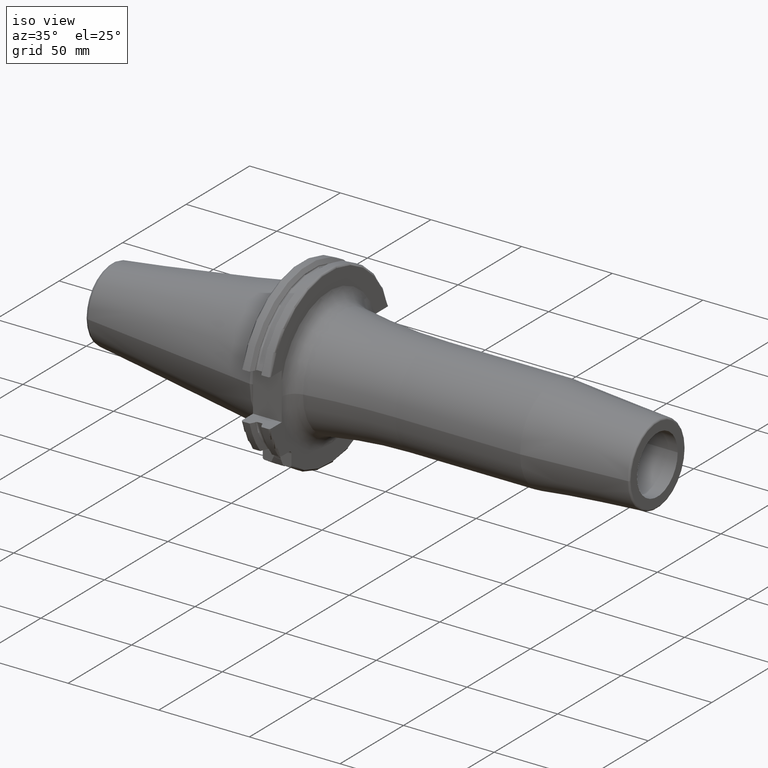
[diagram: clean part render]
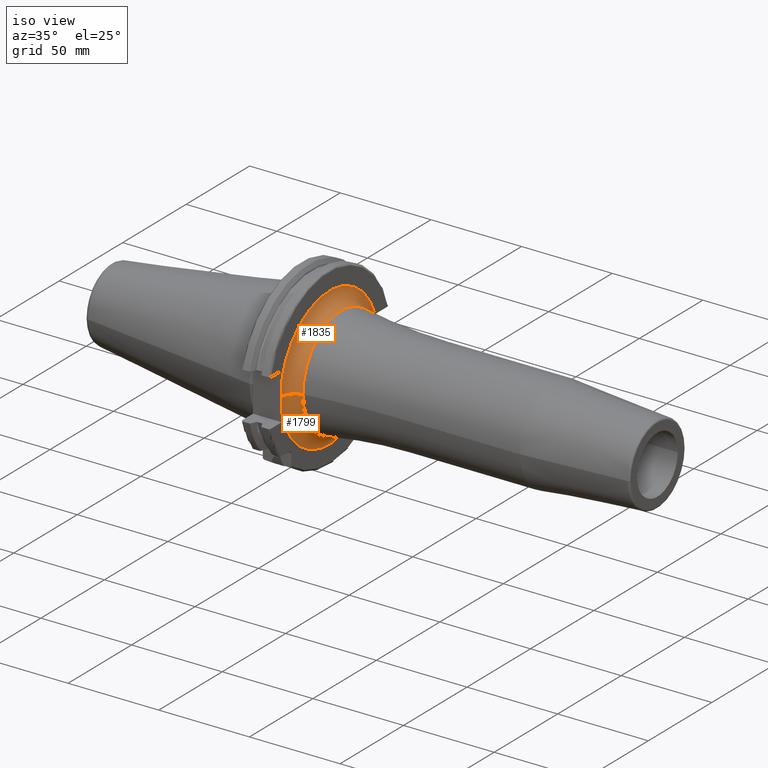
[diagram: same view with one multi-face feature highlighted, each face labeled with its STEP entity id]
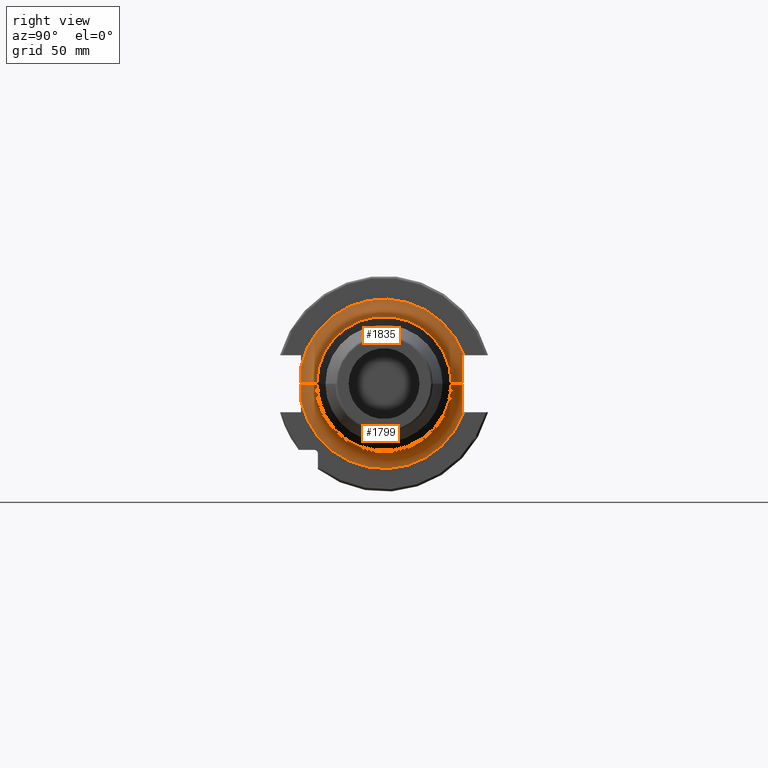
[diagram: same view with one multi-face feature highlighted, each face labeled with its STEP entity id]
A machine part, iso view. The highlighted faces form ONE feature: a constant-radius fillet chain: 2 tangent blend faces with common blend radius 8 mm. The faces share edges in the B-rep.
A second angle (right view) of the same feature is appended — it is thin or edge-on in the first view.
Their STEP definitions:
[1] entity #1835 (Torus):
#155=CARTESIAN_POINT('',(1.905E1,0.E0,0.E0));
#156=DIRECTION('',(1.E0,0.E0,0.E0));
#157=DIRECTION('',(0.E0,9.415938448179E-1,3.367506962146E-1));
#158=AXIS2_PLACEMENT_3D('',#155,#156,#157);
#179=CARTESIAN_POINT('',(2.705E1,-3.830735609290E1,-5.361461807655E-4));
#180=DIRECTION('',(0.E0,1.399590667163E-5,-9.999999999021E-1));
#181=DIRECTION('',(-9.948945934991E-1,1.009195116129E-1,1.412460066019E-6));
#182=AXIS2_PLACEMENT_3D('',#179,#180,#181);
#203=CARTESIAN_POINT('',(1.905E1,-3.749996793271E1,7.823549206088E0));
#204=CARTESIAN_POINT('',(1.905E1,-3.749996793271E1,6.958067766689E0));
#205=CARTESIAN_POINT('',(1.906146977762E1,-3.750001496473E1,5.224101569802E0));
#206=CARTESIAN_POINT('',(1.908433398583E1,-3.749999572436E1,2.611809137307E0));
#207=CARTESIAN_POINT('',(1.909084448880E1,-3.75E1,8.706347915606E-1));
#208=CARTESIAN_POINT('',(1.909084325201E1,-3.75E1,-5.248465002403E-4));
#210=CARTESIAN_POINT('',(1.908283882123E1,3.53E1,1.29E1));
#211=CARTESIAN_POINT('',(1.907191267326E1,3.542799192457E1,1.29E1));
#212=CARTESIAN_POINT('',(1.905550160235E1,3.568432605617E1,1.290000437877E1));
#213=CARTESIAN_POINT('',(1.905E1,3.594128480355E1,1.289999124246E1));
#214=CARTESIAN_POINT('',(1.905E1,3.606995384308E1,1.289999124246E1));
#216=CARTESIAN_POINT('',(1.908283882123E1,3.53E1,1.29E1));
#217=CARTESIAN_POINT('',(1.911143293889E1,3.53E1,1.198340562719E1));
#218=CARTESIAN_POINT('',(1.920002607626E1,3.53E1,1.016297425233E1));
#219=CARTESIAN_POINT('',(1.937023510309E1,3.53E1,7.434984216889E0));
#220=CARTESIAN_POINT('',(1.952047889859E1,3.53E1,4.808596238730E0));
#221=CARTESIAN_POINT('',(1.961515929801E1,3.53E1,2.371122429456E0));
#222=CARTESIAN_POINT('',(1.963677701444E1,3.53E1,7.799505411488E-1));
#223=CARTESIAN_POINT('',(1.963678144604E1,3.53E1,4.947270658838E-4));
#225=CARTESIAN_POINT('',(2.705E1,3.830735609289E1,5.368749541403E-4));
#226=DIRECTION('',(0.E0,-1.401493104316E-5,9.999999999018E-1));
#227=DIRECTION('',(-9.266523192449E-1,-3.759195116117E-1,-5.268486033532E-6));
#228=AXIS2_PLACEMENT_3D('',#225,#226,#227);
#230=CARTESIAN_POINT('',(2.576232876712E1,0.E0,0.E0));
#231=DIRECTION('',(1.E0,0.E0,0.E0));
#232=DIRECTION('',(0.E0,1.E0,0.E0));
#233=AXIS2_PLACEMENT_3D('',#230,#231,#232);
#1514=VERTEX_POINT('',#216);
#1515=VERTEX_POINT('',#223);
#1521=CARTESIAN_POINT('',(2.576232876712E1,-3.041166722259E1,0.E0));
#1522=CARTESIAN_POINT('',(2.576232876712E1,3.041166722259E1,0.E0));
#1523=VERTEX_POINT('',#1521);
#1524=VERTEX_POINT('',#1522);
#1525=CARTESIAN_POINT('',(1.905E1,3.606997071186E1,1.290002883569E1));
#1526=CARTESIAN_POINT('',(1.905E1,-3.749992387111E1,7.823633476638E0));
#1527=VERTEX_POINT('',#1525);
#1528=VERTEX_POINT('',#1526);
#1529=CARTESIAN_POINT('',(1.909084325201E1,-3.75E1,-5.248465002374E-4));
#1530=VERTEX_POINT('',#1529);
#1819=CARTESIAN_POINT('',(2.705E1,0.E0,0.E0));
#1820=DIRECTION('',(1.E0,0.E0,0.E0));
#1821=DIRECTION('',(0.E0,1.485959642861E-3,-9.999988959614E-1));
#1822=AXIS2_PLACEMENT_3D('',#1819,#1820,#1821);
#1823=TOROIDAL_SURFACE('',#1822,3.830735609666E1,8.E0);
#1825=ORIENTED_EDGE('',*,*,#1824,.T.);
#1826=ORIENTED_EDGE('',*,*,#1789,.F.);
#1827=ORIENTED_EDGE('',*,*,#1806,.F.);
#1828=ORIENTED_EDGE('',*,*,#1768,.F.);
#1830=ORIENTED_EDGE('',*,*,#1829,.F.);
#1831=ORIENTED_EDGE('',*,*,#1687,.T.);
#1832=ORIENTED_EDGE('',*,*,#1793,.T.);
#1833=EDGE_LOOP('',(#1825,#1826,#1827,#1828,#1830,#1831,#1832));
#1834=FACE_OUTER_BOUND('',#1833,.F.);
#1835=ADVANCED_FACE('',(#1834),#1823,.F.);
#159=CIRCLE('',#158,3.830735609666E1);
#183=CIRCLE('',#182,8.E0);
#209=B_SPLINE_CURVE_WITH_KNOTS('',3,(#203,#204,#205,#206,#207,#208),
.UNSPECIFIED.,.F.,.F.,(4,1,1,4),(0.E0,3.333333333333E-1,6.666666666667E-1,1.E0),
.UNSPECIFIED.);
#215=B_SPLINE_CURVE_WITH_KNOTS('',3,(#210,#211,#212,#213,#214),.UNSPECIFIED.,
.F.,.F.,(4,1,4),(0.E0,5.E-1,1.E0),.UNSPECIFIED.);
#224=B_SPLINE_CURVE_WITH_KNOTS('',3,(#216,#217,#218,#219,#220,#221,#222,#223),
.UNSPECIFIED.,.F.,.F.,(4,1,1,1,1,4),(0.E0,2.E-1,4.E-1,6.E-1,8.E-1,1.E0),
.UNSPECIFIED.);
#229=CIRCLE('',#228,8.E0);
#234=CIRCLE('',#233,3.041166722259E1);
#1687=EDGE_CURVE('',#1514,#1515,#224,.T.);
#1768=EDGE_CURVE('',#1527,#1528,#159,.T.);
#1789=EDGE_CURVE('',#1530,#1523,#183,.T.);
#1793=EDGE_CURVE('',#1515,#1524,#229,.T.);
#1806=EDGE_CURVE('',#1528,#1530,#209,.T.);
#1824=EDGE_CURVE('',#1524,#1523,#234,.T.);
#1829=EDGE_CURVE('',#1514,#1527,#215,.T.);
[2] entity #1799 (Torus):
#130=CARTESIAN_POINT('',(1.905E1,0.E0,0.E0));
#131=DIRECTION('',(1.E0,0.E0,0.E0));
#132=DIRECTION('',(0.E0,-9.789257517418E-1,-2.042164845861E-1));
#133=AXIS2_PLACEMENT_3D('',#130,#131,#132);
#172=CARTESIAN_POINT('',(1.909084325201E1,-3.75E1,-5.248465002403E-4));
#173=CARTESIAN_POINT('',(1.909084201537E1,-3.75E1,-8.715717197941E-1));
#174=CARTESIAN_POINT('',(1.908432836254E1,-3.749999554271E1,-2.612489256955E0));
#175=CARTESIAN_POINT('',(1.906146657810E1,-3.750001560050E1,-5.224571167688E0));
#176=CARTESIAN_POINT('',(1.905E1,-3.749996657036E1,-6.957976495416E0));
#177=CARTESIAN_POINT('',(1.905E1,-3.749996657036E1,-7.823333159149E0));
#179=CARTESIAN_POINT('',(2.705E1,-3.830735609290E1,-5.361461807655E-4));
#180=DIRECTION('',(0.E0,1.399590667163E-5,-9.999999999021E-1));
#181=DIRECTION('',(-9.948945934991E-1,1.009195116129E-1,1.412460066019E-6));
#182=AXIS2_PLACEMENT_3D('',#179,#180,#181);
#184=CARTESIAN_POINT('',(1.908283882123E1,3.53E1,-1.29E1));
#185=CARTESIAN_POINT('',(1.911144086737E1,3.53E1,-1.198315147686E1));
#186=CARTESIAN_POINT('',(1.920006527524E1,3.53E1,-1.016225557711E1));
#187=CARTESIAN_POINT('',(1.937032466916E1,3.53E1,-7.433580737914E0));
#188=CARTESIAN_POINT('',(1.952056435730E1,3.53E1,-4.806871089704E0));
#189=CARTESIAN_POINT('',(1.961519093228E1,3.53E1,-2.369826522251E0));
#190=CARTESIAN_POINT('',(1.963678587696E1,3.53E1,-7.788420851278E-1));
#191=CARTESIAN_POINT('',(1.963678144604E1,3.53E1,4.947270658838E-4));
#193=CARTESIAN_POINT('',(1.905E1,3.606998785411E1,-1.290000300178E1));
#194=CARTESIAN_POINT('',(1.905E1,3.594131461313E1,-1.290000300178E1));
#195=CARTESIAN_POINT('',(1.905550196173E1,3.568430064020E1,-1.289999849911E1));
#196=CARTESIAN_POINT('',(1.907191303062E1,3.542798773834E1,-1.29E1));
#197=CARTESIAN_POINT('',(1.908283882123E1,3.53E1,-1.29E1));
#223=CARTESIAN_POINT('',(1.963678144604E1,3.53E1,4.947270658838E-4));
#225=CARTESIAN_POINT('',(2.705E1,3.830735609289E1,5.368749541403E-4));
#226=DIRECTION('',(0.E0,-1.401493104316E-5,9.999999999018E-1));
#227=DIRECTION('',(-9.266523192449E-1,-3.759195116117E-1,-5.268486033532E-6));
#228=AXIS2_PLACEMENT_3D('',#225,#226,#227);
#235=CARTESIAN_POINT('',(2.576232876712E1,0.E0,0.E0));
#236=DIRECTION('',(1.E0,0.E0,0.E0));
#237=DIRECTION('',(0.E0,-1.E0,0.E0));
#238=AXIS2_PLACEMENT_3D('',#235,#236,#237);
#1515=VERTEX_POINT('',#223);
#1516=VERTEX_POINT('',#184);
#1517=CARTESIAN_POINT('',(1.905E1,-3.750005736416E1,-7.822993595848E0));
#1518=CARTESIAN_POINT('',(1.905E1,3.606998371324E1,-1.289999248226E1));
#1519=VERTEX_POINT('',#1517);
#1520=VERTEX_POINT('',#1518);
#1521=CARTESIAN_POINT('',(2.576232876712E1,-3.041166722259E1,0.E0));
#1522=CARTESIAN_POINT('',(2.576232876712E1,3.041166722259E1,0.E0));
#1523=VERTEX_POINT('',#1521);
#1524=VERTEX_POINT('',#1522);
#1529=CARTESIAN_POINT('',(1.909084325201E1,-3.75E1,-5.248465002374E-4));
#1530=VERTEX_POINT('',#1529);
#1781=CARTESIAN_POINT('',(2.705E1,0.E0,0.E0));
#1782=DIRECTION('',(1.E0,0.E0,0.E0));
#1783=DIRECTION('',(0.E0,-1.485959642860E-3,9.999988959614E-1));
#1784=AXIS2_PLACEMENT_3D('',#1781,#1782,#1783);
#1785=TOROIDAL_SURFACE('',#1784,3.830735609666E1,8.E0);
#1786=ORIENTED_EDGE('',*,*,#1743,.F.);
#1788=ORIENTED_EDGE('',*,*,#1787,.F.);
#1790=ORIENTED_EDGE('',*,*,#1789,.T.);
#1792=ORIENTED_EDGE('',*,*,#1791,.T.);
#1794=ORIENTED_EDGE('',*,*,#1793,.F.);
#1795=ORIENTED_EDGE('',*,*,#1685,.F.);
#1796=ORIENTED_EDGE('',*,*,#1708,.F.);
#1797=EDGE_LOOP('',(#1786,#1788,#1790,#1792,#1794,#1795,#1796));
#1798=FACE_OUTER_BOUND('',#1797,.F.);
#1799=ADVANCED_FACE('',(#1798),#1785,.F.);
#134=CIRCLE('',#133,3.830735609666E1);
#178=B_SPLINE_CURVE_WITH_KNOTS('',3,(#172,#173,#174,#175,#176,#177),
.UNSPECIFIED.,.F.,.F.,(4,1,1,4),(0.E0,3.333333333333E-1,6.666666666667E-1,1.E0),
.UNSPECIFIED.);
#183=CIRCLE('',#182,8.E0);
#192=B_SPLINE_CURVE_WITH_KNOTS('',3,(#184,#185,#186,#187,#188,#189,#190,#191),
.UNSPECIFIED.,.F.,.F.,(4,1,1,1,1,4),(0.E0,2.E-1,4.E-1,6.E-1,8.E-1,1.E0),
.UNSPECIFIED.);
#198=B_SPLINE_CURVE_WITH_KNOTS('',3,(#193,#194,#195,#196,#197),.UNSPECIFIED.,
.F.,.F.,(4,1,4),(0.E0,5.E-1,1.E0),.UNSPECIFIED.);
#229=CIRCLE('',#228,8.E0);
#239=CIRCLE('',#238,3.041166722259E1);
#1685=EDGE_CURVE('',#1516,#1515,#192,.T.);
#1708=EDGE_CURVE('',#1520,#1516,#198,.T.);
#1743=EDGE_CURVE('',#1519,#1520,#134,.T.);
#1787=EDGE_CURVE('',#1530,#1519,#178,.T.);
#1789=EDGE_CURVE('',#1530,#1523,#183,.T.);
#1791=EDGE_CURVE('',#1523,#1524,#239,.T.);
#1793=EDGE_CURVE('',#1515,#1524,#229,.T.);